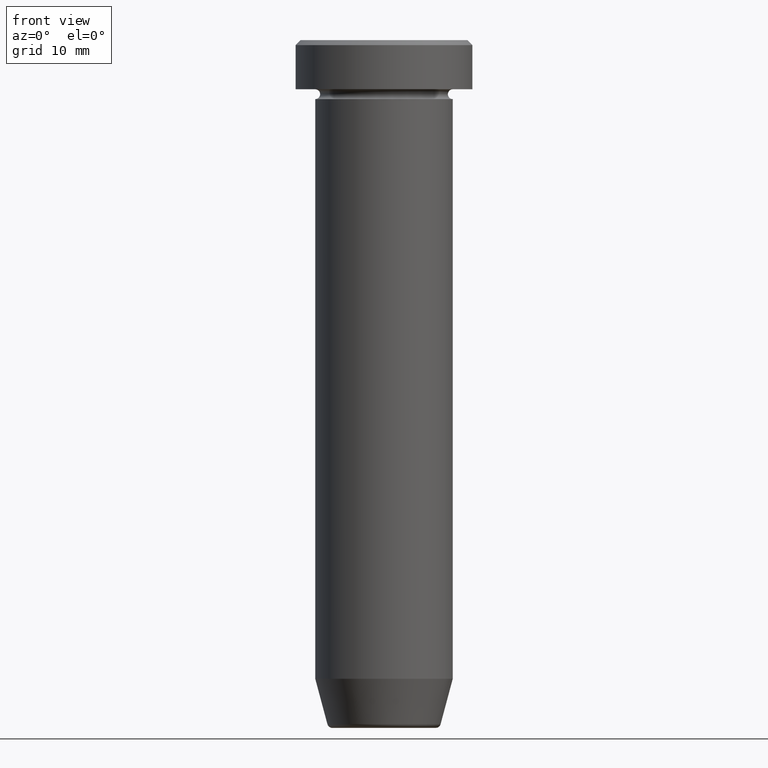
[diagram: clean part render]
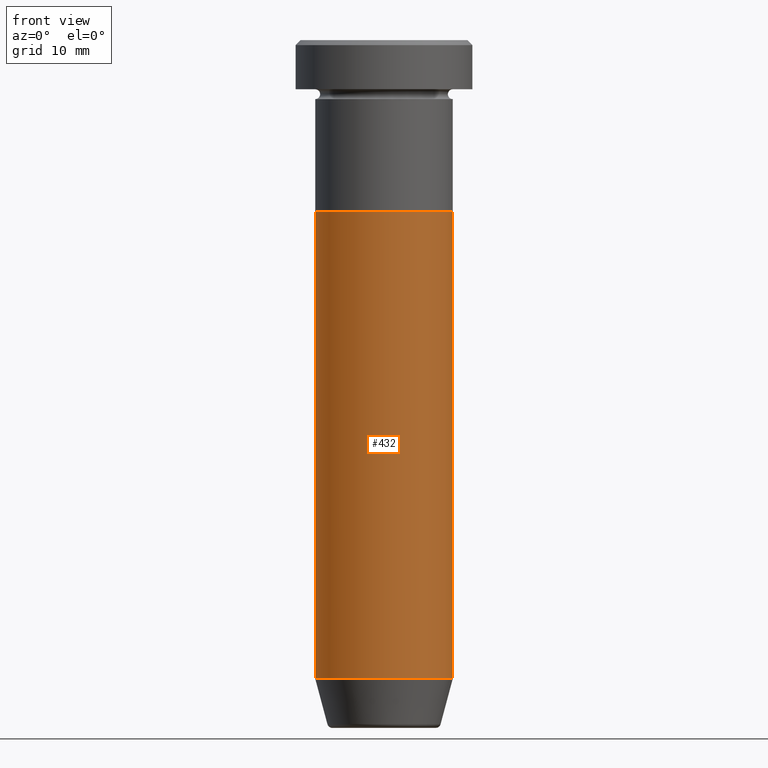
[diagram: same view with one face highlighted and labeled with its STEP entity id]
A machine part, front view. The second image highlights one B-rep face of the part: STEP entity #432.
In plain terms, the highlighted cylindrical surface (partial cylindrical patch) has radius 7 mm, axis along (-0, -0, 1).
Its self-contained STEP definition (entity closure, byte-faithful):
#4 = CIRCLE ( 'NONE', #204, 7.000000000000000000 ) ;
#22 = VERTEX_POINT ( 'NONE', #125 ) ;
#49 = LINE ( 'NONE', #473, #549 ) ;
#59 = CARTESIAN_POINT ( 'NONE',  ( 0.000000000000000000, 0.000000000000000000, -65.00000000000000000 ) ) ;
#67 = ORIENTED_EDGE ( 'NONE', *, *, #457, .F. ) ;
#82 = EDGE_CURVE ( 'NONE', #464, #324, #521, .T. ) ;
#87 = CARTESIAN_POINT ( 'NONE',  ( 7.000000000000000000, 0.000000000000000000, 0.000000000000000000 ) ) ;
#100 = CARTESIAN_POINT ( 'NONE',  ( -7.000000000000000000, 8.572527594031473190E-16, -17.50000000000000000 ) ) ;
#117 = CYLINDRICAL_SURFACE ( 'NONE', #496, 7.000000000000000000 ) ;
#125 = CARTESIAN_POINT ( 'NONE',  ( 7.000000000000000000, 0.000000000000000000, -65.00000000000000000 ) ) ;
#153 = DIRECTION ( 'NONE',  ( 1.000000000000000000, 0.000000000000000000, 0.000000000000000000 ) ) ;
#176 = CARTESIAN_POINT ( 'NONE',  ( 0.000000000000000000, 0.000000000000000000, -17.50000000000000000 ) ) ;
#197 = CARTESIAN_POINT ( 'NONE',  ( 0.000000000000000000, 0.000000000000000000, 0.000000000000000000 ) ) ;
#198 = CARTESIAN_POINT ( 'NONE',  ( -7.000000000000000000, 8.572527594031473190E-16, -65.00000000000000000 ) ) ;
#201 = AXIS2_PLACEMENT_3D ( 'NONE', #176, #224, #412 ) ;
#204 = AXIS2_PLACEMENT_3D ( 'NONE', #59, #568, #153 ) ;
#209 = ORIENTED_EDGE ( 'NONE', *, *, #82, .F. ) ;
#224 = DIRECTION ( 'NONE',  ( -0.000000000000000000, -0.000000000000000000, 1.000000000000000000 ) ) ;
#248 = DIRECTION ( 'NONE',  ( -0.000000000000000000, -0.000000000000000000, 1.000000000000000000 ) ) ;
#268 = EDGE_CURVE ( 'NONE', #573, #22, #4, .T. ) ;
#277 = VECTOR ( 'NONE', #503, 1000.000000000000000 ) ;
#293 = DIRECTION ( 'NONE',  ( 1.000000000000000000, 0.000000000000000000, 0.000000000000000000 ) ) ;
#324 = VERTEX_POINT ( 'NONE', #446 ) ;
#390 = LINE ( 'NONE', #87, #277 ) ;
#395 = EDGE_CURVE ( 'NONE', #22, #324, #390, .T. ) ;
#412 = DIRECTION ( 'NONE',  ( 1.000000000000000000, 0.000000000000000000, 0.000000000000000000 ) ) ;
#432 = ADVANCED_FACE ( 'NONE', ( #444 ), #117, .T. ) ;
#444 = FACE_OUTER_BOUND ( 'NONE', #532, .T. ) ;
#446 = CARTESIAN_POINT ( 'NONE',  ( 7.000000000000000000, 0.000000000000000000, -17.50000000000000000 ) ) ;
#447 = ORIENTED_EDGE ( 'NONE', *, *, #268, .T. ) ;
#457 = EDGE_CURVE ( 'NONE', #573, #464, #49, .T. ) ;
#464 = VERTEX_POINT ( 'NONE', #100 ) ;
#473 = CARTESIAN_POINT ( 'NONE',  ( -7.000000000000000000, 8.572527594031473190E-16, 0.000000000000000000 ) ) ;
#496 = AXIS2_PLACEMENT_3D ( 'NONE', #197, #248, #293 ) ;
#503 = DIRECTION ( 'NONE',  ( -0.000000000000000000, -0.000000000000000000, 1.000000000000000000 ) ) ;
#516 = DIRECTION ( 'NONE',  ( -0.000000000000000000, -0.000000000000000000, 1.000000000000000000 ) ) ;
#521 = CIRCLE ( 'NONE', #201, 7.000000000000000000 ) ;
#528 = ORIENTED_EDGE ( 'NONE', *, *, #395, .T. ) ;
#532 = EDGE_LOOP ( 'NONE', ( #67, #447, #528, #209 ) ) ;
#549 = VECTOR ( 'NONE', #516, 1000.000000000000000 ) ;
#568 = DIRECTION ( 'NONE',  ( -0.000000000000000000, -0.000000000000000000, 1.000000000000000000 ) ) ;
#573 = VERTEX_POINT ( 'NONE', #198 ) ;